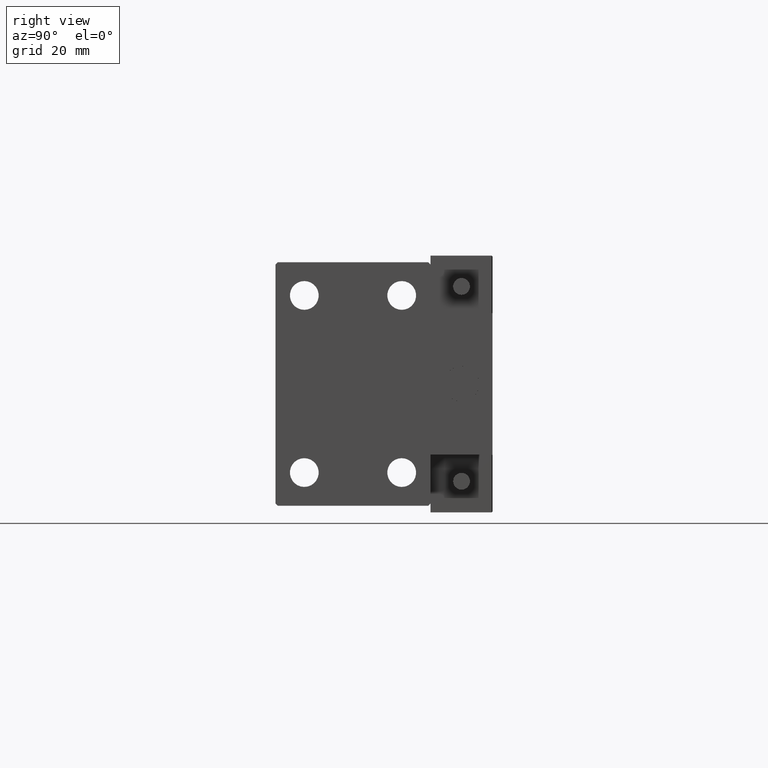
[diagram: clean part render]
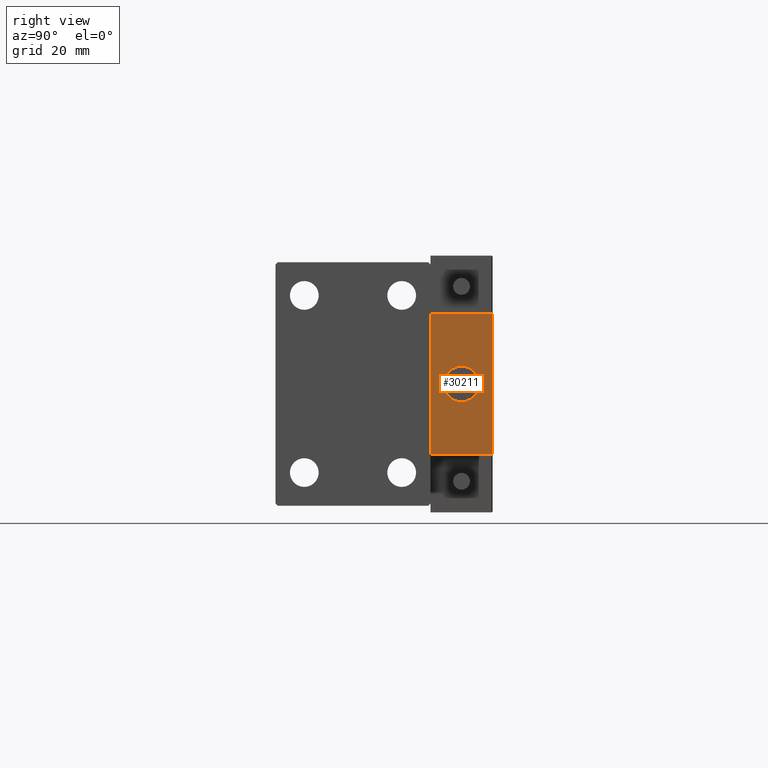
[diagram: same view with one face highlighted and labeled with its STEP entity id]
A machine part, right view. The second image highlights one B-rep face of the part: STEP entity #30211.
In plain terms, the highlighted planar face has unit normal (-1, 0, 0).
Its self-contained STEP definition (entity closure, byte-faithful):
#381 = ORIENTED_EDGE ( 'NONE', *, *, #6449, .F. ) ;
#2546 = CARTESIAN_POINT ( 'NONE',  ( 10.00000000000000000, 7.000000000000000000, 15.99999999999999289 ) ) ;
#2875 = DIRECTION ( 'NONE',  ( 0.000000000000000000, -1.000000000000000000, 0.000000000000000000 ) ) ;
#3195 = ORIENTED_EDGE ( 'NONE', *, *, #23583, .T. ) ;
#3866 = DIRECTION ( 'NONE',  ( 0.000000000000000000, 0.000000000000000000, 1.000000000000000000 ) ) ;
#6047 = DIRECTION ( 'NONE',  ( -1.000000000000000000, 0.000000000000000000, -0.000000000000000000 ) ) ;
#6449 = EDGE_CURVE ( 'NONE', #46012, #47463, #21885, .T. ) ;
#6733 = VERTEX_POINT ( 'NONE', #49445 ) ;
#8899 = VECTOR ( 'NONE', #45945, 1000.000000000000000 ) ;
#11756 = EDGE_CURVE ( 'NONE', #6733, #23346, #37396, .T. ) ;
#12234 = CARTESIAN_POINT ( 'NONE',  ( 10.00000000000000000, 0.000000000000000000, 0.000000000000000000 ) ) ;
#13039 = AXIS2_PLACEMENT_3D ( 'NONE', #12234, #35048, #3866 ) ;
#14285 = CARTESIAN_POINT ( 'NONE',  ( 10.00000000000000000, 7.000000000000000000, -16.00000000000000711 ) ) ;
#14891 = CARTESIAN_POINT ( 'NONE',  ( 10.00000000000000000, 0.000000000000000000, 0.000000000000000000 ) ) ;
#15031 = LINE ( 'NONE', #30490, #8899 ) ;
#15224 = VERTEX_POINT ( 'NONE', #29714 ) ;
#15551 = AXIS2_PLACEMENT_3D ( 'NONE', #25634, #41110, #19031 ) ;
#17992 = LINE ( 'NONE', #29898, #23244 ) ;
#18683 = FACE_BOUND ( 'NONE', #43592, .T. ) ;
#19031 = DIRECTION ( 'NONE',  ( 0.000000000000000000, 0.000000000000000000, 1.000000000000000000 ) ) ;
#21885 = LINE ( 'NONE', #14285, #45298 ) ;
#23244 = VECTOR ( 'NONE', #48669, 1000.000000000000000 ) ;
#23346 = VERTEX_POINT ( 'NONE', #42867 ) ;
#23583 = EDGE_CURVE ( 'NONE', #45716, #15224, #49426, .T. ) ;
#25634 = CARTESIAN_POINT ( 'NONE',  ( 10.00000000000000000, 0.000000000000000000, 0.000000000000000000 ) ) ;
#25762 = ORIENTED_EDGE ( 'NONE', *, *, #44514, .T. ) ;
#29714 = CARTESIAN_POINT ( 'NONE',  ( 10.00000000000000000, -7.000000000000000000, 15.99999999999999289 ) ) ;
#29898 = CARTESIAN_POINT ( 'NONE',  ( 10.00000000000000000, 7.000000000000000000, 15.99999999999999289 ) ) ;
#30211 = ADVANCED_FACE ( 'NONE', ( #18683, #48618 ), #41257, .F. ) ;
#30490 = CARTESIAN_POINT ( 'NONE',  ( 10.00000000000000000, -7.000000000000000000, 15.99999999999999289 ) ) ;
#31837 = VECTOR ( 'NONE', #49174, 1000.000000000000000 ) ;
#35048 = DIRECTION ( 'NONE',  ( -1.000000000000000000, 0.000000000000000000, 0.000000000000000000 ) ) ;
#36374 = CARTESIAN_POINT ( 'NONE',  ( 10.00000000000000000, 7.000000000000000000, -16.00000000000000711 ) ) ;
#36541 = EDGE_CURVE ( 'NONE', #45716, #46012, #17992, .T. ) ;
#36642 = CARTESIAN_POINT ( 'NONE',  ( 10.00000000000000000, -7.000000000000000000, -16.00000000000000711 ) ) ;
#37396 = CIRCLE ( 'NONE', #15551, 4.000000000000000000 ) ;
#39692 = ORIENTED_EDGE ( 'NONE', *, *, #11756, .T. ) ;
#39841 = CARTESIAN_POINT ( 'NONE',  ( 10.00000000000000000, 7.000000000000000000, 15.99999999999999289 ) ) ;
#40328 = ORIENTED_EDGE ( 'NONE', *, *, #45474, .T. ) ;
#41110 = DIRECTION ( 'NONE',  ( -1.000000000000000000, 0.000000000000000000, 0.000000000000000000 ) ) ;
#41257 = PLANE ( 'NONE',  #47313 ) ;
#41377 = CIRCLE ( 'NONE', #13039, 4.000000000000000000 ) ;
#42597 = EDGE_LOOP ( 'NONE', ( #25762, #381, #43726, #3195 ) ) ;
#42867 = CARTESIAN_POINT ( 'NONE',  ( 10.00000000000000000, 0.000000000000000000, 4.000000000000000000 ) ) ;
#43592 = EDGE_LOOP ( 'NONE', ( #40328, #39692 ) ) ;
#43726 = ORIENTED_EDGE ( 'NONE', *, *, #36541, .F. ) ;
#44514 = EDGE_CURVE ( 'NONE', #15224, #47463, #15031, .T. ) ;
#45298 = VECTOR ( 'NONE', #2875, 1000.000000000000000 ) ;
#45474 = EDGE_CURVE ( 'NONE', #23346, #6733, #41377, .T. ) ;
#45716 = VERTEX_POINT ( 'NONE', #39841 ) ;
#45809 = DIRECTION ( 'NONE',  ( -0.000000000000000000, 0.000000000000000000, 1.000000000000000000 ) ) ;
#45945 = DIRECTION ( 'NONE',  ( 0.000000000000000000, 0.000000000000000000, -1.000000000000000000 ) ) ;
#46012 = VERTEX_POINT ( 'NONE', #36374 ) ;
#47313 = AXIS2_PLACEMENT_3D ( 'NONE', #14891, #6047, #45809 ) ;
#47463 = VERTEX_POINT ( 'NONE', #36642 ) ;
#48618 = FACE_OUTER_BOUND ( 'NONE', #42597, .T. ) ;
#48669 = DIRECTION ( 'NONE',  ( 0.000000000000000000, 0.000000000000000000, -1.000000000000000000 ) ) ;
#49174 = DIRECTION ( 'NONE',  ( 0.000000000000000000, -1.000000000000000000, 0.000000000000000000 ) ) ;
#49426 = LINE ( 'NONE', #2546, #31837 ) ;
#49445 = CARTESIAN_POINT ( 'NONE',  ( 10.00000000000000000, 4.898587196589412829E-16, -4.000000000000000000 ) ) ;